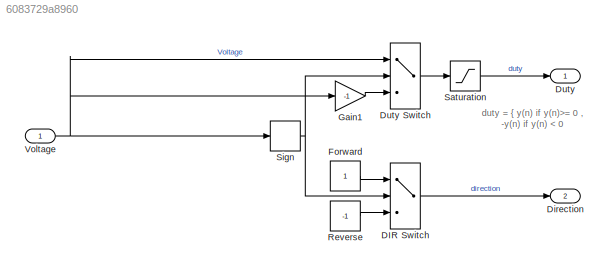
MODEL slx_6083729a8960
KIND model
CONFIG AbsTol = auto
CONFIG EnableMultiTasking = off
CONFIG FixedStep = auto
CONFIG MaxStep = auto
CONFIG MinStep = auto
CONFIG RelTol = 1e-3
CONFIG SampleTimeConstraint = Unconstrained
CONFIG SolverName = VariableStepAuto
CONFIG StartTime = 0.0
CONFIG StopTime = 10.0
BLOCK [Switch] DIR Switch
  InputSameDT = off
  SaturateOnIntegerOverflow = off
BLOCK [Outport] Direction
  Port = 2
BLOCK [Outport] Duty
BLOCK [Switch] Duty Switch
  InputSameDT = off
  SaturateOnIntegerOverflow = off
BLOCK [Constant] Forward
  NameLocation = top
  OutDataTypeStr = double
BLOCK [Gain] Gain1
  Gain = -1
BLOCK [Constant] Reverse
  OutDataTypeStr = double
  Value = -1
BLOCK [Saturate] Saturation
  AttributesFormatString = %<LowerLimit> < duty < %<UpperLimit>
  LowerLimit = 0
  UpperLimit = 1
BLOCK [Signum] Sign
BLOCK [Inport] Voltage
ANNOTATION (root): duty = { y(n) if y(n)>= 0 , -y(n) if y(n) < 0
LINE DIR Switch:1 -> Direction:1
LINE Duty Switch:1 -> Saturation:1
LINE Forward:1 -> DIR Switch:1
LINE Gain1:1 -> Duty Switch:3
LINE Reverse:1 -> DIR Switch:3
LINE Saturation:1 -> Duty:1
NET Sign:1 -> DIR Switch:2, Duty Switch:2
NET Voltage:1 -> Duty Switch:1, Gain1:1, Sign:1
note: NET lines group one-source signal fan-out (src -> all destinations, sorted); 1:1 wires keep LINE
